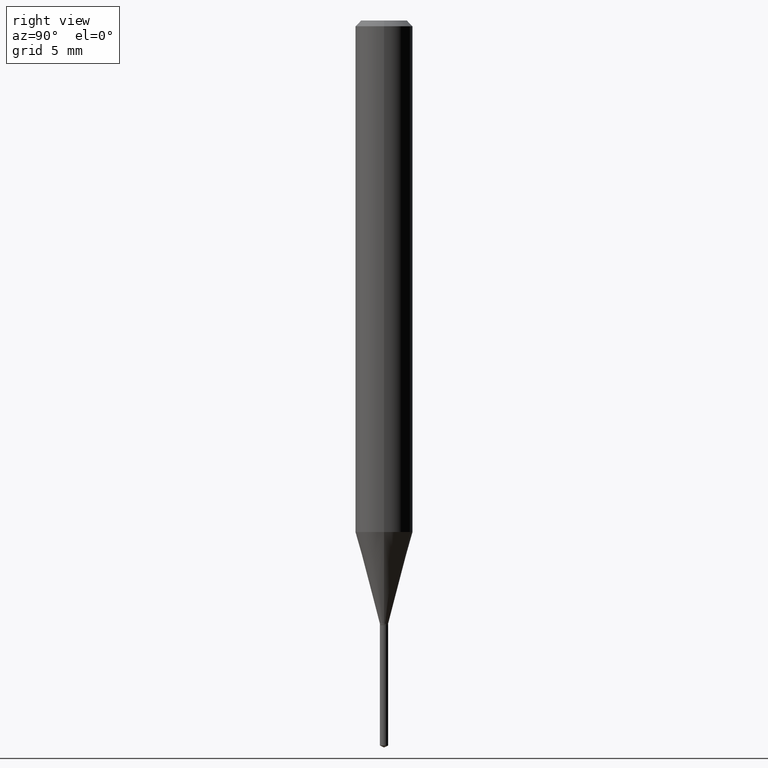
[diagram: clean part render]
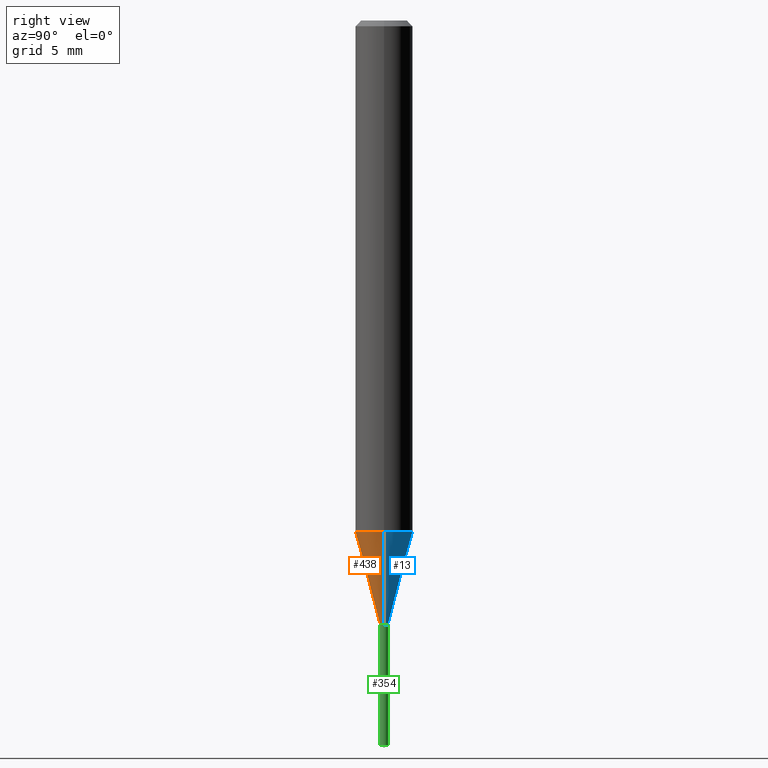
[diagram: same view with three faces highlighted in distinct colors, each labeled with its STEP entity id]
A machine part, right view with three faces highlighted in distinct colors.
Their STEP definitions:

[orange] entity #438 — the highlighted conical surface has half-angle 15 deg.
#24 = DIRECTION ( 'NONE',  ( -2.445468806185136597E-29, 3.491481338843145583E-15, 1.000000000000000000 ) ) ;
#25 = CARTESIAN_POINT ( 'NONE',  ( 3.036294069759465269E-29, -4.335023230307649634E-15, -1.241600000000000037 ) ) ;
#30 = FACE_OUTER_BOUND ( 'NONE', #422, .T. ) ;
#35 = DIRECTION ( 'NONE',  ( 1.000000000000000000, -6.982962677686293532E-15, 0.000000000000000000 ) ) ;
#62 = VERTEX_POINT ( 'NONE', #204 ) ;
#76 = LINE ( 'NONE', #480, #164 ) ;
#91 = EDGE_CURVE ( 'NONE', #153, #273, #239, .T. ) ;
#126 = EDGE_CURVE ( 'NONE', #62, #210, #163, .T. ) ;
#136 = AXIS2_PLACEMENT_3D ( 'NONE', #25, #442, #35 ) ;
#144 = ORIENTED_EDGE ( 'NONE', *, *, #178, .F. ) ;
#153 = VERTEX_POINT ( 'NONE', #286 ) ;
#155 = LINE ( 'NONE', #455, #391 ) ;
#163 = CIRCLE ( 'NONE', #448, 0.008449999999999999178 ) ;
#164 = VECTOR ( 'NONE', #224, 39.37007874015748854 ) ;
#178 = EDGE_CURVE ( 'NONE', #62, #153, #155, .T. ) ;
#200 = AXIS2_PLACEMENT_3D ( 'NONE', #220, #339, #372 ) ;
#204 = CARTESIAN_POINT ( 'NONE',  ( -0.008449999999999999178, -4.278473850474763688E-15, -1.241600000000000037 ) ) ;
#210 = VERTEX_POINT ( 'NONE', #243 ) ;
#220 = CARTESIAN_POINT ( 'NONE',  ( 2.574487409809273648E-29, -3.675685711345442861E-15, -1.052758229137014556 ) ) ;
#224 = DIRECTION ( 'NONE',  ( 0.2588190451025211836, 1.565188264969622559E-15, 0.9659258262890679791 ) ) ;
#239 = CIRCLE ( 'NONE', #200, 0.05905000000000013710 ) ;
#243 = CARTESIAN_POINT ( 'NONE',  ( 0.008449999999999999178, -4.394029264934098821E-15, -1.241600000000000037 ) ) ;
#273 = VERTEX_POINT ( 'NONE', #347 ) ;
#286 = CARTESIAN_POINT ( 'NONE',  ( -0.05905000000000013710, -3.256110225879102579E-15, -1.052758229137014556 ) ) ;
#332 = DIRECTION ( 'NONE',  ( 1.000000000000000000, -6.982962677686293532E-15, 0.000000000000000000 ) ) ;
#339 = DIRECTION ( 'NONE',  ( -2.445468806185136597E-29, 3.491481338843145583E-15, 1.000000000000000000 ) ) ;
#341 = ORIENTED_EDGE ( 'NONE', *, *, #91, .F. ) ;
#347 = CARTESIAN_POINT ( 'NONE',  ( 0.05905000000000013710, -4.088029657462817781E-15, -1.052758229137014556 ) ) ;
#358 = CONICAL_SURFACE ( 'NONE', #136, 0.008449999999999999178, 0.2617993877991499074 ) ;
#372 = DIRECTION ( 'NONE',  ( 1.000000000000000000, -6.982962677686264344E-15, 0.000000000000000000 ) ) ;
#387 = ORIENTED_EDGE ( 'NONE', *, *, #126, .T. ) ;
#391 = VECTOR ( 'NONE', #424, 39.37007874015748854 ) ;
#407 = EDGE_CURVE ( 'NONE', #210, #273, #76, .T. ) ;
#422 = EDGE_LOOP ( 'NONE', ( #144, #387, #462, #341 ) ) ;
#424 = DIRECTION ( 'NONE',  ( -0.2588190451025211836, 5.211531920934547886E-15, 0.9659258262890679791 ) ) ;
#438 = ADVANCED_FACE ( 'NONE', ( #30 ), #358, .T. ) ;
#441 = CARTESIAN_POINT ( 'NONE',  ( 3.036294069759465269E-29, -4.335023230307649634E-15, -1.241600000000000037 ) ) ;
#442 = DIRECTION ( 'NONE',  ( -2.445468806185136597E-29, 3.491481338843145583E-15, 1.000000000000000000 ) ) ;
#448 = AXIS2_PLACEMENT_3D ( 'NONE', #441, #24, #332 ) ;
#455 = CARTESIAN_POINT ( 'NONE',  ( -0.008449999999999999178, -4.274982369135920681E-15, -1.241600000000000037 ) ) ;
#462 = ORIENTED_EDGE ( 'NONE', *, *, #407, .T. ) ;
#480 = CARTESIAN_POINT ( 'NONE',  ( 0.008449999999999999178, -4.394029264934098821E-15, -1.241600000000000037 ) ) ;

[blue] entity #13 — the highlighted conical surface has half-angle 15 deg.
#2 = ORIENTED_EDGE ( 'NONE', *, *, #407, .F. ) ;
#13 = ADVANCED_FACE ( 'NONE', ( #458 ), #180, .T. ) ;
#16 = AXIS2_PLACEMENT_3D ( 'NONE', #413, #377, #486 ) ;
#34 = CARTESIAN_POINT ( 'NONE',  ( 2.574487409809273648E-29, -3.675685711345442861E-15, -1.052758229137014556 ) ) ;
#45 = DIRECTION ( 'NONE',  ( 1.000000000000000000, -6.982962677686293532E-15, 0.000000000000000000 ) ) ;
#62 = VERTEX_POINT ( 'NONE', #204 ) ;
#67 = ORIENTED_EDGE ( 'NONE', *, *, #178, .T. ) ;
#76 = LINE ( 'NONE', #480, #164 ) ;
#86 = CARTESIAN_POINT ( 'NONE',  ( 3.036294069759465269E-29, -4.335023230307649634E-15, -1.241600000000000037 ) ) ;
#115 = DIRECTION ( 'NONE',  ( 1.000000000000000000, -6.982962677686264344E-15, 0.000000000000000000 ) ) ;
#120 = AXIS2_PLACEMENT_3D ( 'NONE', #34, #482, #115 ) ;
#137 = EDGE_CURVE ( 'NONE', #210, #62, #288, .T. ) ;
#153 = VERTEX_POINT ( 'NONE', #286 ) ;
#155 = LINE ( 'NONE', #455, #391 ) ;
#164 = VECTOR ( 'NONE', #224, 39.37007874015748854 ) ;
#178 = EDGE_CURVE ( 'NONE', #62, #153, #155, .T. ) ;
#180 = CONICAL_SURFACE ( 'NONE', #229, 0.008449999999999999178, 0.2617993877991499074 ) ;
#204 = CARTESIAN_POINT ( 'NONE',  ( -0.008449999999999999178, -4.278473850474763688E-15, -1.241600000000000037 ) ) ;
#207 = CIRCLE ( 'NONE', #120, 0.05905000000000013710 ) ;
#210 = VERTEX_POINT ( 'NONE', #243 ) ;
#224 = DIRECTION ( 'NONE',  ( 0.2588190451025211836, 1.565188264969622559E-15, 0.9659258262890679791 ) ) ;
#229 = AXIS2_PLACEMENT_3D ( 'NONE', #86, #383, #45 ) ;
#243 = CARTESIAN_POINT ( 'NONE',  ( 0.008449999999999999178, -4.394029264934098821E-15, -1.241600000000000037 ) ) ;
#254 = EDGE_CURVE ( 'NONE', #273, #153, #207, .T. ) ;
#273 = VERTEX_POINT ( 'NONE', #347 ) ;
#286 = CARTESIAN_POINT ( 'NONE',  ( -0.05905000000000013710, -3.256110225879102579E-15, -1.052758229137014556 ) ) ;
#288 = CIRCLE ( 'NONE', #16, 0.008449999999999999178 ) ;
#325 = ORIENTED_EDGE ( 'NONE', *, *, #137, .T. ) ;
#347 = CARTESIAN_POINT ( 'NONE',  ( 0.05905000000000013710, -4.088029657462817781E-15, -1.052758229137014556 ) ) ;
#377 = DIRECTION ( 'NONE',  ( -2.445468806185136597E-29, 3.491481338843145583E-15, 1.000000000000000000 ) ) ;
#383 = DIRECTION ( 'NONE',  ( -2.445468806185136597E-29, 3.491481338843145583E-15, 1.000000000000000000 ) ) ;
#386 = EDGE_LOOP ( 'NONE', ( #325, #67, #436, #2 ) ) ;
#391 = VECTOR ( 'NONE', #424, 39.37007874015748854 ) ;
#407 = EDGE_CURVE ( 'NONE', #210, #273, #76, .T. ) ;
#413 = CARTESIAN_POINT ( 'NONE',  ( 3.036294069759465269E-29, -4.335023230307649634E-15, -1.241600000000000037 ) ) ;
#424 = DIRECTION ( 'NONE',  ( -0.2588190451025211836, 5.211531920934547886E-15, 0.9659258262890679791 ) ) ;
#436 = ORIENTED_EDGE ( 'NONE', *, *, #254, .F. ) ;
#455 = CARTESIAN_POINT ( 'NONE',  ( -0.008449999999999999178, -4.274982369135920681E-15, -1.241600000000000037 ) ) ;
#458 = FACE_OUTER_BOUND ( 'NONE', #386, .T. ) ;
#480 = CARTESIAN_POINT ( 'NONE',  ( 0.008449999999999999178, -4.394029264934098821E-15, -1.241600000000000037 ) ) ;
#482 = DIRECTION ( 'NONE',  ( -2.445468806185136597E-29, 3.491481338843145583E-15, 1.000000000000000000 ) ) ;
#486 = DIRECTION ( 'NONE',  ( 1.000000000000000000, -6.982962677686293532E-15, 0.000000000000000000 ) ) ;

[green] entity #354 — the highlighted cylindrical surface (edge-blend (fillet) strip) has radius 0.2146 mm, axis along (-0, 0, 1).
#3 = DIRECTION ( 'NONE',  ( -6.982962677686265922E-15, -1.000000000000000000, 0.000000000000000000 ) ) ;
#18 = EDGE_CURVE ( 'NONE', #230, #111, #453, .T. ) ;
#29 = CARTESIAN_POINT ( 'NONE',  ( -5.900603462641245587E-17, -0.008450000000005210288, -1.492159700288590019 ) ) ;
#37 = VERTEX_POINT ( 'NONE', #157 ) ;
#41 = ORIENTED_EDGE ( 'NONE', *, *, #234, .F. ) ;
#52 = CARTESIAN_POINT ( 'NONE',  ( 6.004086117176494469E-17, 0.008449999999994789804, -1.492159700288590019 ) ) ;
#73 = DIRECTION ( 'NONE',  ( -6.982962677686265922E-15, -1.000000000000000000, 0.000000000000000000 ) ) ;
#78 = VERTEX_POINT ( 'NONE', #29 ) ;
#85 = DIRECTION ( 'NONE',  ( -2.445453018118844559E-29, 3.491503948252676758E-15, 1.000000000000000000 ) ) ;
#97 = DIRECTION ( 'NONE',  ( -6.982962677686265922E-15, -1.000000000000000000, 0.000000000000000000 ) ) ;
#103 = DIRECTION ( 'NONE',  ( -2.445453018118844278E-29, 3.491503948252676363E-15, 1.000000000000000000 ) ) ;
#111 = VERTEX_POINT ( 'NONE', #367 ) ;
#114 = ORIENTED_EDGE ( 'NONE', *, *, #342, .F. ) ;
#125 = AXIS2_PLACEMENT_3D ( 'NONE', #421, #261, #73 ) ;
#135 = AXIS2_PLACEMENT_3D ( 'NONE', #464, #162, #97 ) ;
#157 = CARTESIAN_POINT ( 'NONE',  ( -5.900603462641852024E-17, -0.008450000000004342926, -1.244099999999999984 ) ) ;
#162 = DIRECTION ( 'NONE',  ( -2.445453018118844559E-29, 3.491503948252676758E-15, 1.000000000000000000 ) ) ;
#194 = LINE ( 'NONE', #445, #450 ) ;
#230 = VERTEX_POINT ( 'NONE', #52 ) ;
#234 = EDGE_CURVE ( 'NONE', #37, #111, #277, .T. ) ;
#240 = CARTESIAN_POINT ( 'NONE',  ( 3.042407741774928155E-29, -4.343751933654757151E-15, -1.244099999999999984 ) ) ;
#245 = EDGE_CURVE ( 'NONE', #78, #230, #439, .T. ) ;
#251 = ORIENTED_EDGE ( 'NONE', *, *, #245, .T. ) ;
#261 = DIRECTION ( 'NONE',  ( -2.445453018118844559E-29, 3.491503948252676758E-15, 1.000000000000000000 ) ) ;
#275 = EDGE_LOOP ( 'NONE', ( #251, #444, #41, #114 ) ) ;
#277 = CIRCLE ( 'NONE', #381, 0.008449999999999999178 ) ;
#293 = CYLINDRICAL_SURFACE ( 'NONE', #125, 0.008449999999999999178 ) ;
#334 = DIRECTION ( 'NONE',  ( -2.445453018118844278E-29, 3.491503948252676363E-15, 1.000000000000000000 ) ) ;
#335 = FACE_OUTER_BOUND ( 'NONE', #275, .T. ) ;
#342 = EDGE_CURVE ( 'NONE', #78, #37, #194, .T. ) ;
#354 = ADVANCED_FACE ( 'NONE', ( #335 ), #293, .T. ) ;
#367 = CARTESIAN_POINT ( 'NONE',  ( 6.004086117176498166E-17, 0.008449999999995655431, -1.244099999999999984 ) ) ;
#369 = CARTESIAN_POINT ( 'NONE',  ( 6.004086117175886799E-17, 0.008449999999995655431, -1.244099999999999984 ) ) ;
#381 = AXIS2_PLACEMENT_3D ( 'NONE', #240, #85, #3 ) ;
#411 = VECTOR ( 'NONE', #334, 39.37007874015748143 ) ;
#421 = CARTESIAN_POINT ( 'NONE',  ( 3.042407741774928155E-29, -4.343751933654757151E-15, -1.244099999999999984 ) ) ;
#439 = CIRCLE ( 'NONE', #135, 0.008449999999999999178 ) ;
#444 = ORIENTED_EDGE ( 'NONE', *, *, #18, .T. ) ;
#445 = CARTESIAN_POINT ( 'NONE',  ( -5.900603462641852024E-17, -0.008450000000004342926, -1.244099999999999984 ) ) ;
#450 = VECTOR ( 'NONE', #103, 39.37007874015748143 ) ;
#453 = LINE ( 'NONE', #369, #411 ) ;
#464 = CARTESIAN_POINT ( 'NONE',  ( 3.649026084519317183E-29, -5.209853356614744857E-15, -1.492159700288590019 ) ) ;